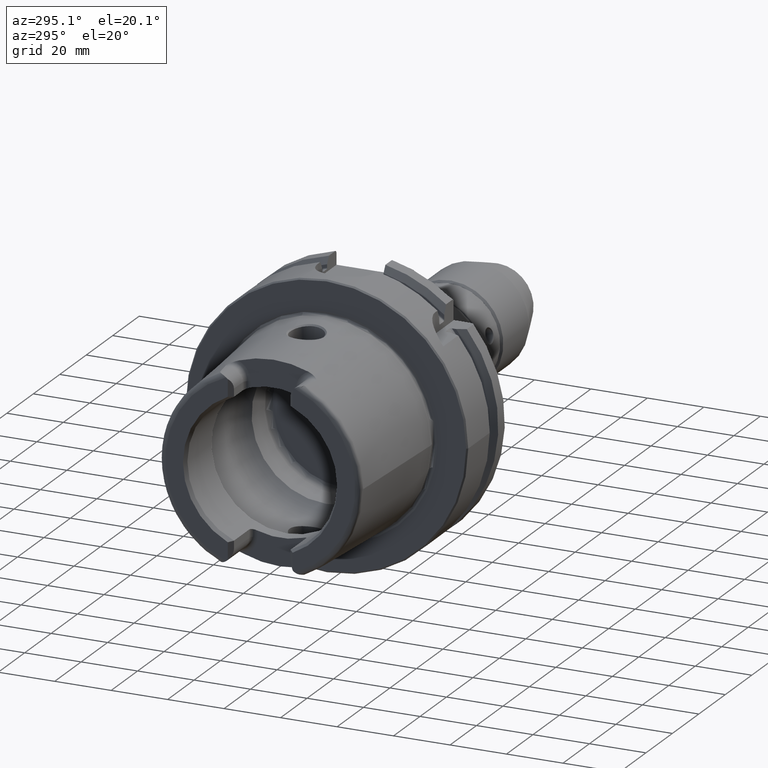
[diagram: clean part render]
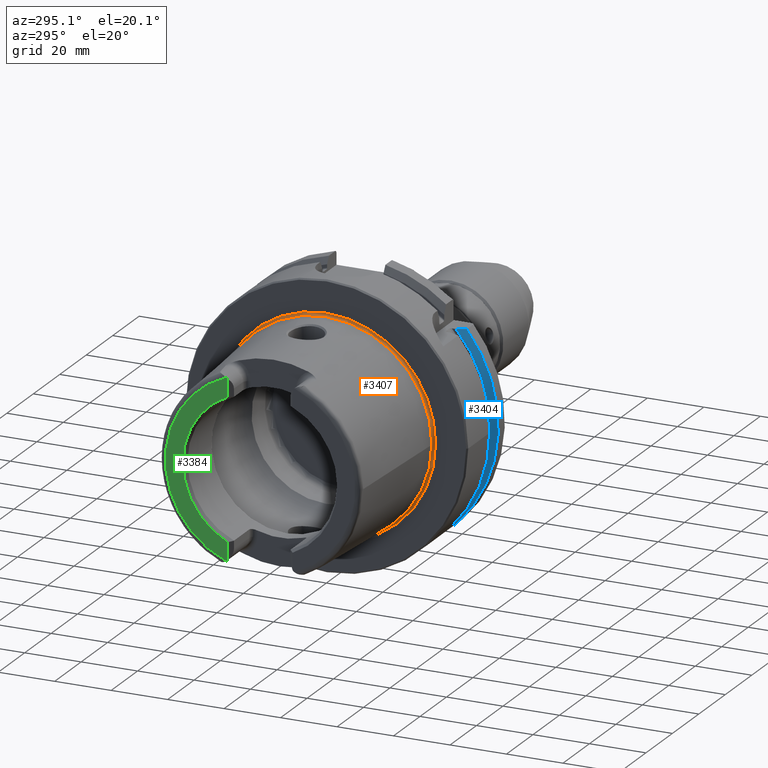
[diagram: same view with three faces highlighted in distinct colors, each labeled with its STEP entity id]
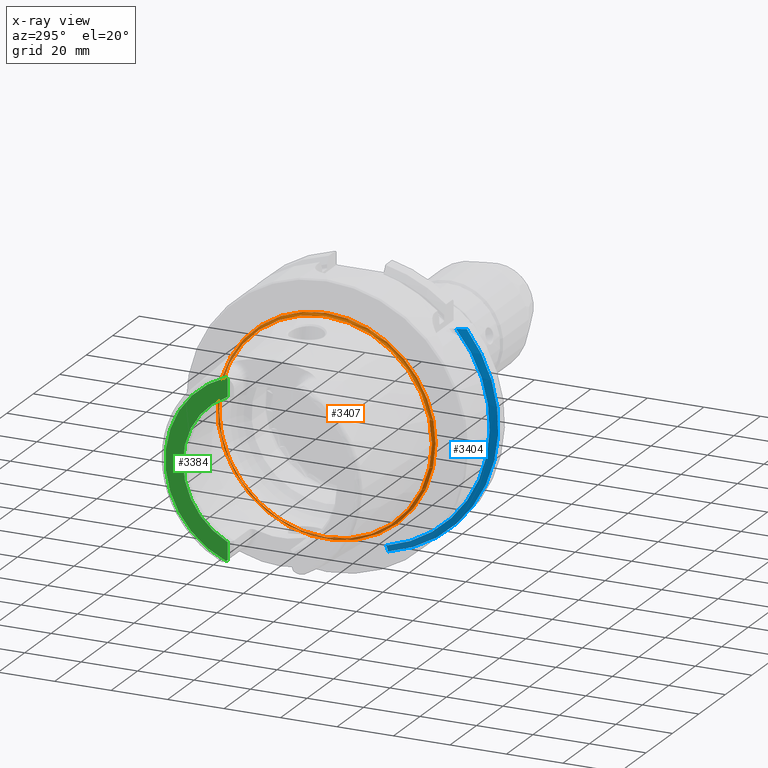
[diagram: x-ray of the same camera — body ghosted, the three highlighted faces saturated]
A machine part, auxiliary view with three faces highlighted in distinct colors.
The next image is the same camera in x-ray (body ghosted, the three faces saturated) — at least one of them is partly hidden behind the body in this view.
Their STEP definitions:

[orange] entity #3407 — the highlighted toroidal blend (fillet) surface has major radius 38.5073 mm and minor (blend) radius 0.8 mm.
#501=TOROIDAL_SURFACE('',#3926,38.5073016032064,0.8);
#837=FACE_OUTER_BOUND('',#1028,.T.);
#1028=EDGE_LOOP('',(#2962,#2963,#2964,#2965,#2966,#2967));
#1562=CIRCLE('',#3902,38.6186400839745);
#1563=CIRCLE('',#3903,38.6186400839745);
#1573=CIRCLE('',#3924,37.7073016032064);
#1574=CIRCLE('',#3925,37.7073016032064);
#1575=CIRCLE('',#3927,0.8);
#1830=VERTEX_POINT('',#6675);
#1831=VERTEX_POINT('',#6676);
#1835=VERTEX_POINT('',#6705);
#1836=VERTEX_POINT('',#6706);
#2210=EDGE_CURVE('',#1830,#1831,#1562,.T.);
#2211=EDGE_CURVE('',#1831,#1830,#1563,.T.);
#2224=EDGE_CURVE('',#1835,#1836,#1573,.T.);
#2226=EDGE_CURVE('',#1836,#1835,#1574,.T.);
#2227=EDGE_CURVE('',#1836,#1831,#1575,.T.);
#2962=ORIENTED_EDGE('',*,*,#2224,.T.);
#2963=ORIENTED_EDGE('',*,*,#2227,.T.);
#2964=ORIENTED_EDGE('',*,*,#2210,.F.);
#2965=ORIENTED_EDGE('',*,*,#2211,.F.);
#2966=ORIENTED_EDGE('',*,*,#2227,.F.);
#2967=ORIENTED_EDGE('',*,*,#2226,.T.);
#3407=ADVANCED_FACE('',(#837),#501,.F.);
#3902=AXIS2_PLACEMENT_3D('',#6677,#4672,#4673);
#3903=AXIS2_PLACEMENT_3D('',#6678,#4674,#4675);
#3924=AXIS2_PLACEMENT_3D('',#6707,#4719,#4720);
#3925=AXIS2_PLACEMENT_3D('',#6709,#4722,#4723);
#3926=AXIS2_PLACEMENT_3D('',#6710,#4724,#4725);
#3927=AXIS2_PLACEMENT_3D('',#6711,#4726,#4727);
#4672=DIRECTION('center_axis',(1.,0.,0.));
#4673=DIRECTION('ref_axis',(0.,0.,-1.));
#4674=DIRECTION('center_axis',(1.,0.,0.));
#4675=DIRECTION('ref_axis',(0.,0.,-1.));
#4719=DIRECTION('center_axis',(1.,0.,0.));
#4720=DIRECTION('ref_axis',(0.,0.,-1.));
#4722=DIRECTION('center_axis',(1.,0.,0.));
#4723=DIRECTION('ref_axis',(0.,0.,-1.));
#4724=DIRECTION('center_axis',(1.,0.,0.));
#4725=DIRECTION('ref_axis',(0.,0.,-1.));
#4726=DIRECTION('center_axis',(0.,-1.,-1.22464679914735E-16));
#4727=DIRECTION('ref_axis',(0.,-1.22464679914735E-16,1.));
#6675=CARTESIAN_POINT('',(0.0922144549932558,-38.6186400839745,-4.7294193966263E-15));
#6676=CARTESIAN_POINT('',(0.0922144549932559,-4.7294193966263E-15,38.6186400839745));
#6677=CARTESIAN_POINT('Origin',(0.0922144549932559,0.,0.));
#6678=CARTESIAN_POINT('Origin',(0.0922144549932559,0.,0.));
#6705=CARTESIAN_POINT('',(-0.7,-37.7073016032064,-4.61781262128506E-15));
#6706=CARTESIAN_POINT('',(-0.7,-4.61781262128506E-15,37.7073016032064));
#6707=CARTESIAN_POINT('Origin',(-0.7,0.,0.));
#6709=CARTESIAN_POINT('Origin',(-0.7,0.,0.));
#6710=CARTESIAN_POINT('Origin',(-0.7,0.,0.));
#6711=CARTESIAN_POINT('Origin',(-0.7,-4.71578436521685E-15,38.5073016032064));

[blue] entity #3404 — the highlighted conical surface has half-angle 60 deg.
#513=(
BOUNDED_CURVE()
B_SPLINE_CURVE(2,(#6157,#6158,#6159),.UNSPECIFIED.,.F.,.F.)
B_SPLINE_CURVE_WITH_KNOTS((3,3),(0.,0.343884390880419),.UNSPECIFIED.)
CURVE()
GEOMETRIC_REPRESENTATION_ITEM()
RATIONAL_B_SPLINE_CURVE((1.,1.00052016257005,1.))
REPRESENTATION_ITEM('')
);
#518=(
BOUNDED_CURVE()
B_SPLINE_CURVE(2,(#6380,#6381,#6382),.UNSPECIFIED.,.F.,.F.)
B_SPLINE_CURVE_WITH_KNOTS((3,3),(0.,0.28292349080556),.UNSPECIFIED.)
CURVE()
GEOMETRIC_REPRESENTATION_ITEM()
RATIONAL_B_SPLINE_CURVE((1.,1.0003193410929,1.))
REPRESENTATION_ITEM('')
);
#621=CONICAL_SURFACE('',#3920,48.7987976320958,1.0471975511966);
#834=FACE_OUTER_BOUND('',#1025,.T.);
#1025=EDGE_LOOP('',(#2949,#2950,#2951,#2952));
#1519=CIRCLE('',#3814,50.);
#1571=CIRCLE('',#3919,47.5975952641917);
#1743=VERTEX_POINT('',#6154);
#1744=VERTEX_POINT('',#6156);
#1783=VERTEX_POINT('',#6377);
#1784=VERTEX_POINT('',#6379);
#2060=EDGE_CURVE('',#1744,#1743,#513,.T.);
#2113=EDGE_CURVE('',#1784,#1783,#518,.T.);
#2136=EDGE_CURVE('',#1744,#1783,#1519,.T.);
#2221=EDGE_CURVE('',#1743,#1784,#1571,.T.);
#2949=ORIENTED_EDGE('',*,*,#2060,.T.);
#2950=ORIENTED_EDGE('',*,*,#2221,.T.);
#2951=ORIENTED_EDGE('',*,*,#2113,.T.);
#2952=ORIENTED_EDGE('',*,*,#2136,.F.);
#3404=ADVANCED_FACE('',(#834),#621,.T.);
#3814=AXIS2_PLACEMENT_3D('',#6454,#4474,#4475);
#3919=AXIS2_PLACEMENT_3D('',#6698,#4708,#4709);
#3920=AXIS2_PLACEMENT_3D('',#6699,#4710,#4711);
#4474=DIRECTION('center_axis',(1.,0.,0.));
#4475=DIRECTION('ref_axis',(0.,0.,-1.));
#4708=DIRECTION('center_axis',(1.,0.,0.));
#4709=DIRECTION('ref_axis',(0.,0.,-1.));
#4710=DIRECTION('center_axis',(1.,0.,0.));
#4711=DIRECTION('ref_axis',(0.,-0.951449961441176,-0.307803461438603));
#6154=CARTESIAN_POINT('',(21.875,-35.6830642593065,31.5));
#6156=CARTESIAN_POINT('',(23.2620290209214,-38.8297566307078,31.5));
#6157=CARTESIAN_POINT('Ctrl Pts',(23.2620290209214,-38.8297566307078,31.5));
#6158=CARTESIAN_POINT('Ctrl Pts',(22.5392272442767,-37.2176818849707,31.5));
#6159=CARTESIAN_POINT('Ctrl Pts',(21.875,-35.6830642593065,31.5));
#6377=CARTESIAN_POINT('',(23.2620290209214,-11.,-48.7749935930288));
#6379=CARTESIAN_POINT('',(21.875,-11.,-46.3090819919138));
#6380=CARTESIAN_POINT('Ctrl Pts',(21.875,-11.,-46.3090819919138));
#6381=CARTESIAN_POINT('Ctrl Pts',(22.5505288964237,-11.,-47.5116880808802));
#6382=CARTESIAN_POINT('Ctrl Pts',(23.2620290209214,-11.,-48.7749935930288));
#6454=CARTESIAN_POINT('Origin',(23.2620290209214,0.,0.));
#6698=CARTESIAN_POINT('Origin',(21.875,0.,0.));
#6699=CARTESIAN_POINT('Origin',(22.5685145104607,0.,0.));

[green] entity #3384 — the highlighted planar face has unit normal (-1, 0, 0).
#681=PLANE('',#3876);
#814=FACE_OUTER_BOUND('',#1001,.T.);
#1001=EDGE_LOOP('',(#2864,#2865,#2866,#2867,#2868,#2869));
#1107=LINE('',#5274,#1284);
#1119=LINE('',#5385,#1296);
#1284=VECTOR('',#4201,10.);
#1296=VECTOR('',#4261,10.);
#1466=CIRCLE('',#3714,4.88);
#1477=CIRCLE('',#3739,4.88);
#1544=CIRCLE('',#3868,27.3660254037844);
#1545=CIRCLE('',#3872,33.6001839277785);
#1654=VERTEX_POINT('',#5267);
#1657=VERTEX_POINT('',#5272);
#1660=VERTEX_POINT('',#5282);
#1681=VERTEX_POINT('',#5382);
#1682=VERTEX_POINT('',#5384);
#1687=VERTEX_POINT('',#5403);
#1949=EDGE_CURVE('',#1657,#1654,#1107,.T.);
#1953=EDGE_CURVE('',#1660,#1654,#1466,.T.);
#1980=EDGE_CURVE('',#1681,#1682,#1119,.T.);
#1987=EDGE_CURVE('',#1681,#1687,#1477,.T.);
#2186=EDGE_CURVE('',#1682,#1657,#1544,.T.);
#2188=EDGE_CURVE('',#1660,#1687,#1545,.T.);
#2864=ORIENTED_EDGE('',*,*,#1949,.F.);
#2865=ORIENTED_EDGE('',*,*,#2186,.F.);
#2866=ORIENTED_EDGE('',*,*,#1980,.F.);
#2867=ORIENTED_EDGE('',*,*,#1987,.T.);
#2868=ORIENTED_EDGE('',*,*,#2188,.F.);
#2869=ORIENTED_EDGE('',*,*,#1953,.T.);
#3384=ADVANCED_FACE('',(#814),#681,.T.);
#3714=AXIS2_PLACEMENT_3D('',#5283,#4209,#4210);
#3739=AXIS2_PLACEMENT_3D('',#5416,#4270,#4271);
#3868=AXIS2_PLACEMENT_3D('',#6622,#4598,#4599);
#3872=AXIS2_PLACEMENT_3D('',#6627,#4607,#4608);
#3876=AXIS2_PLACEMENT_3D('',#6634,#4616,#4617);
#4201=DIRECTION('',(0.,0.,-1.));
#4209=DIRECTION('center_axis',(-1.,0.,0.));
#4210=DIRECTION('ref_axis',(0.,-0.477884921181368,0.878422450821629));
#4261=DIRECTION('',(0.,0.,-1.));
#4270=DIRECTION('center_axis',(-1.,0.,0.));
#4271=DIRECTION('ref_axis',(0.,1.,0.));
#4598=DIRECTION('center_axis',(-1.,0.,0.));
#4599=DIRECTION('ref_axis',(0.,-1.,0.));
#4607=DIRECTION('center_axis',(1.,0.,0.));
#4608=DIRECTION('ref_axis',(0.,0.,-1.));
#4616=DIRECTION('center_axis',(-1.,0.,0.));
#4617=DIRECTION('ref_axis',(0.,0.,1.));
#5267=CARTESIAN_POINT('',(-50.,11.51,-30.8899431813596));
#5272=CARTESIAN_POINT('',(-50.,11.51,-24.8277918148307));
#5274=CARTESIAN_POINT('',(-50.,11.51,-10.));
#5282=CARTESIAN_POINT('',(-50.,12.0743049948301,-31.355757348091));
#5283=CARTESIAN_POINT('Origin',(-50.,14.89,-27.37));
#5382=CARTESIAN_POINT('',(-50.,11.51,30.8899431813596));
#5384=CARTESIAN_POINT('',(-50.,11.51,24.8277918148307));
#5385=CARTESIAN_POINT('',(-50.,11.51,13.685));
#5403=CARTESIAN_POINT('',(-50.,12.0743049948301,31.355757348091));
#5416=CARTESIAN_POINT('Origin',(-50.,14.89,27.37));
#6622=CARTESIAN_POINT('Origin',(-50.,0.,0.));
#6627=CARTESIAN_POINT('Origin',(-50.,0.,0.));
#6634=CARTESIAN_POINT('Origin',(-50.,33.6001839277785,0.));